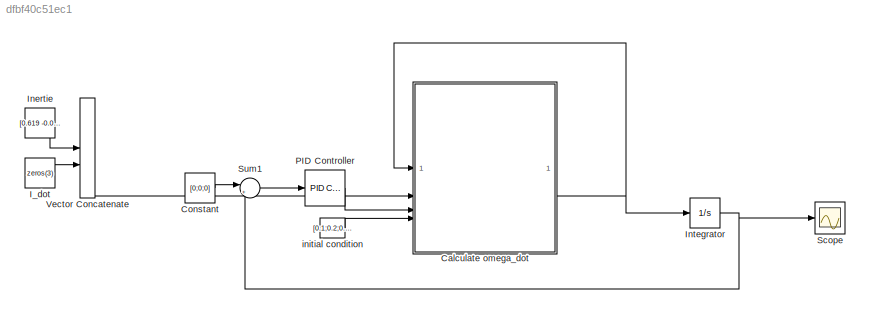
MODEL slx_dfbf40c51ec1
KIND model
CONFIG AbsTol = auto
CONFIG EnableMultiTasking = off
CONFIG FixedStep = auto
CONFIG MaxStep = auto
CONFIG MinStep = auto
CONFIG RelTol = 1e-3
CONFIG SampleTimeConstraint = Unconstrained
CONFIG SolverName = VariableStepAuto
CONFIG StartTime = 0.0
CONFIG StopTime = 10
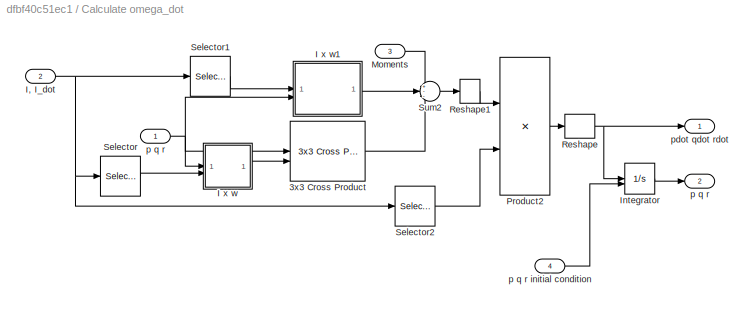
BLOCK [SubSystem] Calculate omega_dot
  AncestorBlock = shared6dofsys/Calculate omega_dot
  LibrarySourceBlock = shared6dofsys/Calculate omega_dot
  PermitHierarchicalResolution = ExplicitOnly
BLOCK [Reference] Calculate omega_dot/3x3 Cross Product  REF=sharedutil/3x3 Cross Product
  SourceBlock = sharedutil/3x3 Cross Product
  SourceType = CrossProduct
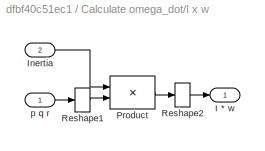
BLOCK [SubSystem] Calculate omega_dot/I x w
  NameLocation = top
BLOCK [Outport] Calculate omega_dot/I x w/I * w
  VectorParamsAs1DForOutWhenUnconnected = off
BLOCK [Inport] Calculate omega_dot/I x w/Inertia
  Port = 2
BLOCK [Product] Calculate omega_dot/I x w/Product
  InputSameDT = on
  Multiplication = Matrix(*)
  OutDataTypeStr = Inherit: Same as first input
  SaturateOnIntegerOverflow = on
BLOCK [Reshape] Calculate omega_dot/I x w/Reshape1
  OutputDimensionality = Column vector (2-D)
BLOCK [Reshape] Calculate omega_dot/I x w/Reshape2
BLOCK [Inport] Calculate omega_dot/I x w/p q r
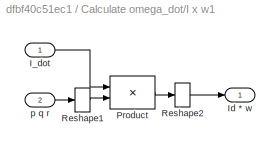
BLOCK [SubSystem] Calculate omega_dot/I x w1
  NameLocation = top
BLOCK [Inport] Calculate omega_dot/I x w1/I_dot
BLOCK [Outport] Calculate omega_dot/I x w1/Id * w
  VectorParamsAs1DForOutWhenUnconnected = off
BLOCK [Product] Calculate omega_dot/I x w1/Product
  InputSameDT = on
  Multiplication = Matrix(*)
  OutDataTypeStr = Inherit: Same as first input
  SaturateOnIntegerOverflow = on
BLOCK [Reshape] Calculate omega_dot/I x w1/Reshape1
  OutputDimensionality = Column vector (2-D)
BLOCK [Reshape] Calculate omega_dot/I x w1/Reshape2
BLOCK [Inport] Calculate omega_dot/I x w1/p q r
  Port = 2
BLOCK [Inport] Calculate omega_dot/I, I_dot
  OutDataTypeStr = double
  Port = 2
BLOCK [Integrator] Calculate omega_dot/Integrator
  InitialConditionSource = external
BLOCK [Inport] Calculate omega_dot/Moments
  OutDataTypeStr = double
  Port = 3
BLOCK [Product] Calculate omega_dot/Product2
  Inputs = */
  Multiplication = Matrix(*)
  NameLocation = top
  OutDataTypeStr = Inherit: Same as first input
  SaturateOnIntegerOverflow = on
BLOCK [Reshape] Calculate omega_dot/Reshape
BLOCK [Reshape] Calculate omega_dot/Reshape1
  OutputDimensionality = Row vector (2-D)
BLOCK [Selector] Calculate omega_dot/Selector
  IndexOptions = Index vector (dialog),Select all
  Indices = 1:3,-1
  InputPortWidth = 2
  NumberOfDimensions = 2
  OutputSizes = 1
BLOCK [Selector] Calculate omega_dot/Selector1
  IndexOptions = Index vector (dialog),Select all
  Indices = 4:6,-1
  InputPortWidth = 2
  NumberOfDimensions = 2
  OutputSizes = 1
BLOCK [Selector] Calculate omega_dot/Selector2
  IndexOptions = Index vector (dialog),Select all
  Indices = 1:3,-1
  InputPortWidth = 2
  NumberOfDimensions = 2
  OutputSizes = 1
BLOCK [Sum] Calculate omega_dot/Sum2
  Inputs = +--
  SaturateOnIntegerOverflow = on
BLOCK [Outport] Calculate omega_dot/p q  r
  Port = 2
BLOCK [Inport] Calculate omega_dot/p q r
  OutDataTypeStr = double
BLOCK [Inport] Calculate omega_dot/p q r initial condition
  Port = 4
BLOCK [Outport] Calculate omega_dot/pdot qdot rdot
  OutDataTypeStr = double
  VectorParamsAs1DForOutWhenUnconnected = off
BLOCK [Constant] Constant
  Value = [0;0;0]
BLOCK [Constant] I_dot
  Value = zeros(3)
BLOCK [Constant] Inertie
  Value = [0.619 -0.008 0;-0.008 0.782 0;0 0 1.226]
BLOCK [Integrator] Integrator
BLOCK [Reference] PID Controller  REF=slpidlib/PID Controller
  LibrarySourceBlock = simulink/Continuous/PID Controller
  SourceBlock = slpidlib/PID Controller
  SourceType = PID 1dof
BLOCK [Scope] Scope
  Floating = off
  NumInputPorts = 1
  ScopeSpecificationString = Simulink.scopes.TimeScopeBlockCfg('CurrentConfiguration', extmgr.ConfigurationSet(extmgr.Configuration('Core','General UI',true),extmgr.Configuration('Core','Source UI',true),extmgr.Configuration('Sources','WiredSimulink',true),extmgr.Configuration('Visuals','Time Domain',true,'SerializedDisplays',{struct('MinYLimReal','-0.0185','MaxYLimReal','0.03538','YLabelReal','','MinYLimMag','0.00000','MaxYL...<+1389ch>
BLOCK [Sum] Sum1
  Inputs = |+-
BLOCK [Concatenate] Vector Concatenate
  Mode = Multidimensional array
BLOCK [Constant] initial condition
  Value = [0.1;0.2;0.3]
NET Calculate omega_dot:2 -> Calculate omega_dot:1, Integrator:1
LINE Constant:1 -> Sum1:1
LINE I_dot:1 -> Vector Concatenate:2
LINE Inertie:1 -> Vector Concatenate:1
NET Integrator:1 -> Scope:1, Sum1:2
LINE PID Controller:1 -> Calculate omega_dot:3
LINE Sum1:1 -> PID Controller:1
LINE Vector Concatenate:1 -> Calculate omega_dot:2
LINE initial condition:1 -> Calculate omega_dot:4
note: NET lines group one-source signal fan-out (src -> all destinations, sorted); 1:1 wires keep LINE
